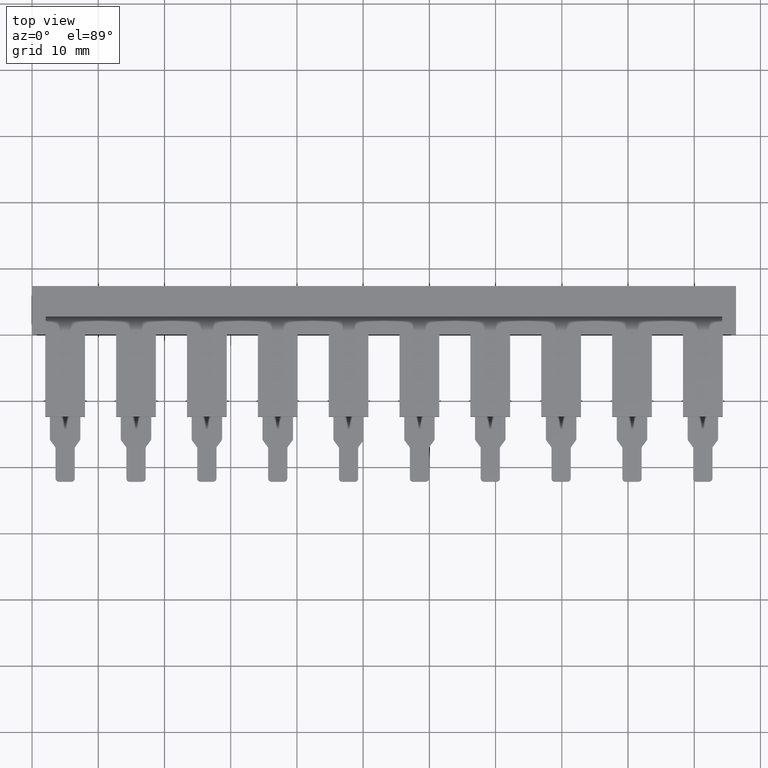
[diagram: clean part render]
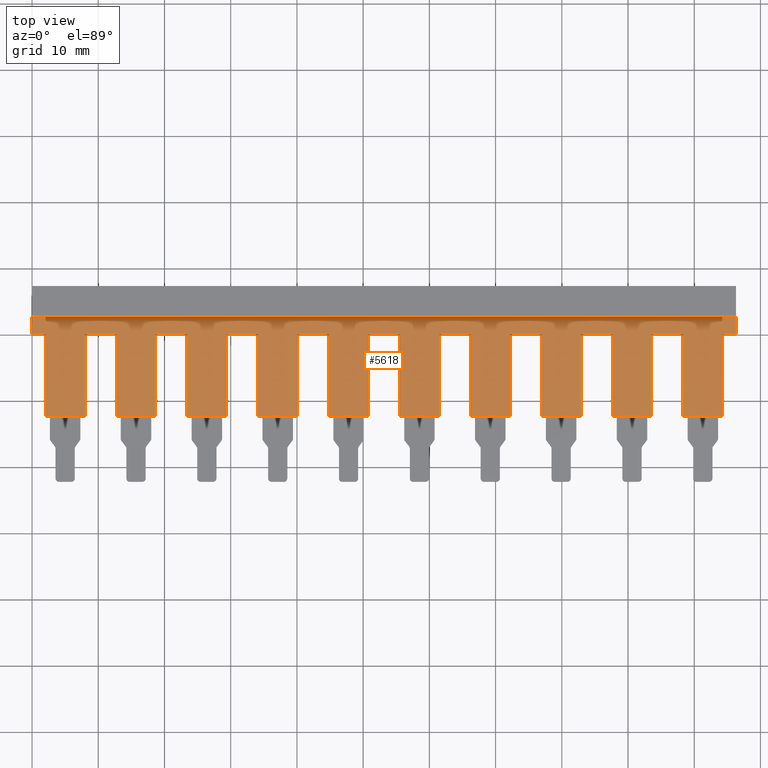
[diagram: same view with one face highlighted and labeled with its STEP entity id]
A machine part, top view. The second image highlights one B-rep face of the part: STEP entity #5618.
In plain terms, the highlighted planar face has unit normal (0, 0, 1).
Its self-contained STEP definition (entity closure, byte-faithful):
#608 = FACE_OUTER_BOUND ( 'NONE', #2208, .T. ) ;
#610 = DIRECTION ( 'NONE',  ( 0.0000000000000000000, 0.0000000000000000000, 1.000000000000000000 ) ) ;
#639 = CARTESIAN_POINT ( 'NONE',  ( 29.39999999999999500, 4.173744683200197900E-015, 4.100000000000000500 ) ) ;
#642 = PLANE ( 'NONE',  #1103 ) ;
#643 = DIRECTION ( 'NONE',  ( 1.000000000000000000, 0.0000000000000000000, -0.0000000000000000000 ) ) ;
#1103 = AXIS2_PLACEMENT_3D ( 'NONE', #639, #610, #643 ) ;
#1325 = VECTOR ( 'NONE', #2381, 1000.000000000000000 ) ;
#1335 = VECTOR ( 'NONE', #2469, 1000.000000000000000 ) ;
#1338 = VECTOR ( 'NONE', #2490, 1000.000000000000000 ) ;
#1339 = VECTOR ( 'NONE', #2498, 1000.000000000000000 ) ;
#1341 = VECTOR ( 'NONE', #2510, 1000.000000000000000 ) ;
#1342 = VECTOR ( 'NONE', #2366, 1000.000000000000000 ) ;
#1348 = VECTOR ( 'NONE', #2462, 1000.000000000000000 ) ;
#1353 = VECTOR ( 'NONE', #2415, 1000.000000000000000 ) ;
#1354 = VECTOR ( 'NONE', #2392, 1000.000000000000000 ) ;
#1355 = VECTOR ( 'NONE', #2408, 1000.000000000000000 ) ;
#1358 = VECTOR ( 'NONE', #2453, 1000.000000000000000 ) ;
#1359 = VECTOR ( 'NONE', #2404, 1000.000000000000000 ) ;
#1361 = VECTOR ( 'NONE', #2374, 1000.000000000000000 ) ;
#1362 = VECTOR ( 'NONE', #2460, 1000.000000000000000 ) ;
#1367 = VECTOR ( 'NONE', #2379, 1000.000000000000000 ) ;
#1370 = VECTOR ( 'NONE', #2530, 1000.000000000000000 ) ;
#1373 = VECTOR ( 'NONE', #2517, 1000.000000000000000 ) ;
#1376 = VECTOR ( 'NONE', #3388, 1000.000000000000000 ) ;
#1378 = VECTOR ( 'NONE', #2515, 1000.000000000000000 ) ;
#1379 = VECTOR ( 'NONE', #3351, 1000.000000000000000 ) ;
#1386 = VECTOR ( 'NONE', #3356, 1000.000000000000000 ) ;
#1387 = VECTOR ( 'NONE', #2547, 1000.000000000000000 ) ;
#1388 = VECTOR ( 'NONE', #2575, 1000.000000000000000 ) ;
#1393 = VECTOR ( 'NONE', #2491, 1000.000000000000000 ) ;
#1396 = VECTOR ( 'NONE', #2573, 1000.000000000000000 ) ;
#1397 = VECTOR ( 'NONE', #3364, 1000.000000000000000 ) ;
#1398 = VECTOR ( 'NONE', #2583, 1000.000000000000000 ) ;
#1403 = VECTOR ( 'NONE', #2568, 1000.000000000000000 ) ;
#1408 = VECTOR ( 'NONE', #3350, 1000.000000000000000 ) ;
#1414 = VECTOR ( 'NONE', #2492, 1000.000000000000000 ) ;
#1417 = VECTOR ( 'NONE', #2558, 1000.000000000000000 ) ;
#1420 = VECTOR ( 'NONE', #3352, 1000.000000000000000 ) ;
#1421 = VECTOR ( 'NONE', #2518, 1000.000000000000000 ) ;
#1424 = VECTOR ( 'NONE', #3432, 1000.000000000000000 ) ;
#1427 = VECTOR ( 'NONE', #3451, 1000.000000000000000 ) ;
#1430 = VECTOR ( 'NONE', #3439, 1000.000000000000000 ) ;
#1432 = VECTOR ( 'NONE', #3454, 1000.000000000000000 ) ;
#1434 = VECTOR ( 'NONE', #3448, 1000.000000000000000 ) ;
#1440 = VECTOR ( 'NONE', #3456, 1000.000000000000000 ) ;
#1444 = VECTOR ( 'NONE', #3464, 1000.000000000000000 ) ;
#1447 = VECTOR ( 'NONE', #3429, 1000.000000000000000 ) ;
#1449 = VECTOR ( 'NONE', #3443, 1000.000000000000000 ) ;
#1451 = VECTOR ( 'NONE', #3403, 1000.000000000000000 ) ;
#1456 = VECTOR ( 'NONE', #3393, 1000.000000000000000 ) ;
#2208 = EDGE_LOOP ( 'NONE', ( #6244, #6246, #6247, #6218, #6347, #6349, #6293, #6317, #6287, #6299, #6280, #6295, #6344, #6351, #6324, #6334, #6319, #6345, #6318, #6288, #6301, #6323, #6394, #6361, #6363, #6325, #6327, #6283, #6290, #6329, #6300, #6306, #6331, #6332, #6316, #6298, #6276, #6321, #6291, #6286, #6356, #6362, #6322, #6307 ) ) ;
#2341 = LINE ( 'NONE', #2368, #1359 ) ;
#2353 = LINE ( 'NONE', #2364, #1342 ) ;
#2364 = CARTESIAN_POINT ( 'NONE',  ( 42.10000000000000100, 6.585010314807962100E-015, 4.100000000000000500 ) ) ;
#2366 = DIRECTION ( 'NONE',  ( 1.000000000000000000, 2.775557561562890400E-016, -0.0000000000000000000 ) ) ;
#2368 = CARTESIAN_POINT ( 'NONE',  ( 29.39999999999999500, 2.700000000000004600, 4.100000000000000500 ) ) ;
#2371 = LINE ( 'NONE', #2396, #1367 ) ;
#2372 = LINE ( 'NONE', #2376, #1325 ) ;
#2374 = DIRECTION ( 'NONE',  ( 1.000000000000000000, 7.947176037020060600E-016, -0.0000000000000000000 ) ) ;
#2375 = LINE ( 'NONE', #2414, #1353 ) ;
#2376 = CARTESIAN_POINT ( 'NONE',  ( 20.07069040994250000, -12.39999999999999900, 4.100000000000000500 ) ) ;
#2379 = DIRECTION ( 'NONE',  ( 1.000000000000000000, 7.947176037020060600E-016, -0.0000000000000000000 ) ) ;
#2381 = DIRECTION ( 'NONE',  ( -1.000000000000000000, 0.0000000000000000000, 0.0000000000000000000 ) ) ;
#2386 = CARTESIAN_POINT ( 'NONE',  ( 87.59999999999999400, -12.49999999999998900, 4.100000000000000500 ) ) ;
#2388 = LINE ( 'NONE', #2461, #1362 ) ;
#2391 = LINE ( 'NONE', #2403, #1354 ) ;
#2392 = DIRECTION ( 'NONE',  ( -0.0000000000000000000, -1.000000000000000000, -0.0000000000000000000 ) ) ;
#2393 = LINE ( 'NONE', #2407, #1361 ) ;
#2396 = CARTESIAN_POINT ( 'NONE',  ( 18.70000000000000300, -1.879018618104244700E-015, 4.100000000000000500 ) ) ;
#2402 = LINE ( 'NONE', #2386, #1355 ) ;
#2403 = CARTESIAN_POINT ( 'NONE',  ( 34.10000000000000100, -12.49999999999999600, 4.100000000000000500 ) ) ;
#2404 = DIRECTION ( 'NONE',  ( -1.000000000000000000, -2.775557561562890400E-016, 0.0000000000000000000 ) ) ;
#2407 = CARTESIAN_POINT ( 'NONE',  ( 18.70000000000000300, -1.879018618104244700E-015, 4.100000000000000500 ) ) ;
#2408 = DIRECTION ( 'NONE',  ( -0.0000000000000000000, -1.000000000000000000, -0.0000000000000000000 ) ) ;
#2414 = CARTESIAN_POINT ( 'NONE',  ( 8.000000000000000000, -3.735172737399429900E-015, 4.100000000000000500 ) ) ;
#2415 = DIRECTION ( 'NONE',  ( -1.387778780781445900E-016, 1.000000000000000000, -0.0000000000000000000 ) ) ;
#2425 = LINE ( 'NONE', #2472, #1338 ) ;
#2429 = LINE ( 'NONE', #2456, #1358 ) ;
#2449 = LINE ( 'NONE', #2457, #1348 ) ;
#2453 = DIRECTION ( 'NONE',  ( -1.000000000000000000, 0.0000000000000000000, 0.0000000000000000000 ) ) ;
#2456 = CARTESIAN_POINT ( 'NONE',  ( 41.47069040994249900, -12.39999999999999500, 4.100000000000000500 ) ) ;
#2457 = CARTESIAN_POINT ( 'NONE',  ( 98.29999999999999700, -12.49999999999998600, 4.100000000000000500 ) ) ;
#2460 = DIRECTION ( 'NONE',  ( -3.016491377670779700E-016, 1.000000000000000000, -0.0000000000000000000 ) ) ;
#2461 = CARTESIAN_POINT ( 'NONE',  ( 106.3000000000000000, 7.300000000000017600, 4.100000000000000500 ) ) ;
#2462 = DIRECTION ( 'NONE',  ( -0.0000000000000000000, -1.000000000000000000, -0.0000000000000000000 ) ) ;
#2468 = CARTESIAN_POINT ( 'NONE',  ( 0.0000000000000000000, -12.40000000000000200, 4.099999999999999600 ) ) ;
#2469 = DIRECTION ( 'NONE',  ( -1.000000000000000000, 0.0000000000000000000, 0.0000000000000000000 ) ) ;
#2472 = CARTESIAN_POINT ( 'NONE',  ( 42.10000000000000100, 6.585010314807962100E-015, 4.100000000000000500 ) ) ;
#2474 = LINE ( 'NONE', #2504, #1341 ) ;
#2478 = LINE ( 'NONE', #2468, #1335 ) ;
#2482 = LINE ( 'NONE', #2503, #1393 ) ;
#2487 = LINE ( 'NONE', #2505, #1414 ) ;
#2488 = LINE ( 'NONE', #2495, #1339 ) ;
#2490 = DIRECTION ( 'NONE',  ( 1.000000000000000000, 2.775557561562890400E-016, -0.0000000000000000000 ) ) ;
#2491 = DIRECTION ( 'NONE',  ( 1.000000000000000000, 2.775557561562890400E-016, -0.0000000000000000000 ) ) ;
#2492 = DIRECTION ( 'NONE',  ( 1.000000000000000000, 0.0000000000000000000, -0.0000000000000000000 ) ) ;
#2495 = CARTESIAN_POINT ( 'NONE',  ( 0.0000000000000000000, 7.299999999999999800, 4.100000000000000500 ) ) ;
#2498 = DIRECTION ( 'NONE',  ( -2.409338161078894500E-017, -1.000000000000000000, -0.0000000000000000000 ) ) ;
#2503 = CARTESIAN_POINT ( 'NONE',  ( 42.10000000000000100, 6.585010314807962100E-015, 4.100000000000000500 ) ) ;
#2504 = CARTESIAN_POINT ( 'NONE',  ( 42.10000000000000100, 6.585010314807962100E-015, 4.100000000000000500 ) ) ;
#2505 = CARTESIAN_POINT ( 'NONE',  ( 0.0000000000000000000, 0.0000000000000000000, 4.100000000000000500 ) ) ;
#2510 = DIRECTION ( 'NONE',  ( 1.000000000000000000, 2.775557561562890400E-016, -0.0000000000000000000 ) ) ;
#2513 = LINE ( 'NONE', #2516, #1421 ) ;
#2515 = DIRECTION ( 'NONE',  ( -1.000000000000000000, 0.0000000000000000000, 0.0000000000000000000 ) ) ;
#2516 = CARTESIAN_POINT ( 'NONE',  ( 55.49999999999999300, -12.49999999999999300, 4.100000000000000500 ) ) ;
#2517 = DIRECTION ( 'NONE',  ( 1.000000000000000000, 2.775557561562890400E-016, -0.0000000000000000000 ) ) ;
#2518 = DIRECTION ( 'NONE',  ( -0.0000000000000000000, -1.000000000000000000, -0.0000000000000000000 ) ) ;
#2521 = LINE ( 'NONE', #2523, #1378 ) ;
#2522 = CARTESIAN_POINT ( 'NONE',  ( 66.19999999999998900, -12.49999999999999300, 4.100000000000000500 ) ) ;
#2523 = CARTESIAN_POINT ( 'NONE',  ( 73.57069040994248600, -12.39999999999999000, 4.100000000000000500 ) ) ;
#2526 = LINE ( 'NONE', #2529, #1370 ) ;
#2529 = CARTESIAN_POINT ( 'NONE',  ( 40.10000000000000100, -2.286449880905931700E-017, 4.100000000000000500 ) ) ;
#2530 = DIRECTION ( 'NONE',  ( -2.775557561562890400E-016, 1.000000000000000000, -0.0000000000000000000 ) ) ;
#2532 = LINE ( 'NONE', #2522, #1417 ) ;
#2538 = LINE ( 'NONE', #2550, #1387 ) ;
#2547 = DIRECTION ( 'NONE',  ( 1.000000000000000000, 2.775557561562890400E-016, -0.0000000000000000000 ) ) ;
#2550 = CARTESIAN_POINT ( 'NONE',  ( 42.10000000000000100, 6.585010314807962100E-015, 4.100000000000000500 ) ) ;
#2552 = LINE ( 'NONE', #2555, #1373 ) ;
#2555 = CARTESIAN_POINT ( 'NONE',  ( 42.10000000000000100, 6.585010314807962100E-015, 4.100000000000000500 ) ) ;
#2558 = DIRECTION ( 'NONE',  ( -0.0000000000000000000, -1.000000000000000000, -0.0000000000000000000 ) ) ;
#2562 = LINE ( 'NONE', #2603, #1398 ) ;
#2565 = LINE ( 'NONE', #2597, #1396 ) ;
#2568 = DIRECTION ( 'NONE',  ( 1.000000000000000000, 2.775557561562890400E-016, -0.0000000000000000000 ) ) ;
#2573 = DIRECTION ( 'NONE',  ( -2.775557561562890400E-016, 1.000000000000000000, -0.0000000000000000000 ) ) ;
#2574 = LINE ( 'NONE', #2579, #1388 ) ;
#2575 = DIRECTION ( 'NONE',  ( -1.000000000000000000, 0.0000000000000000000, 0.0000000000000000000 ) ) ;
#2579 = CARTESIAN_POINT ( 'NONE',  ( 62.87069040994249000, -12.39999999999999100, 4.100000000000000500 ) ) ;
#2582 = CARTESIAN_POINT ( 'NONE',  ( 31.39999999999999900, 4.728856195512776100E-015, 4.100000000000000500 ) ) ;
#2583 = DIRECTION ( 'NONE',  ( -0.0000000000000000000, -1.000000000000000000, -0.0000000000000000000 ) ) ;
#2594 = LINE ( 'NONE', #2582, #1403 ) ;
#2597 = CARTESIAN_POINT ( 'NONE',  ( 18.70000000000000600, -3.735172737399429900E-015, 4.100000000000000500 ) ) ;
#2603 = CARTESIAN_POINT ( 'NONE',  ( 23.39999999999999900, -12.49999999999999800, 4.100000000000000500 ) ) ;
#3350 = DIRECTION ( 'NONE',  ( -1.000000000000000000, 0.0000000000000000000, 0.0000000000000000000 ) ) ;
#3351 = DIRECTION ( 'NONE',  ( -2.775557561562890400E-016, 1.000000000000000000, -0.0000000000000000000 ) ) ;
#3352 = DIRECTION ( 'NONE',  ( -1.000000000000000000, 0.0000000000000000000, 0.0000000000000000000 ) ) ;
#3354 = LINE ( 'NONE', #3370, #1386 ) ;
#3356 = DIRECTION ( 'NONE',  ( -2.775557561562890400E-016, 1.000000000000000000, -0.0000000000000000000 ) ) ;
#3358 = LINE ( 'NONE', #3368, #1397 ) ;
#3362 = LINE ( 'NONE', #3387, #1379 ) ;
#3363 = LINE ( 'NONE', #3384, #1376 ) ;
#3364 = DIRECTION ( 'NONE',  ( -0.0000000000000000000, -1.000000000000000000, -0.0000000000000000000 ) ) ;
#3367 = LINE ( 'NONE', #3377, #1420 ) ;
#3368 = CARTESIAN_POINT ( 'NONE',  ( 76.89999999999999100, -12.49999999999999100, 4.100000000000000500 ) ) ;
#3370 = CARTESIAN_POINT ( 'NONE',  ( 104.3000000000000000, 1.111406021696205100E-014, 4.100000000000000500 ) ) ;
#3376 = LINE ( 'NONE', #3382, #1408 ) ;
#3377 = CARTESIAN_POINT ( 'NONE',  ( 84.27069040994248900, -12.39999999999998600, 4.100000000000000500 ) ) ;
#3382 = CARTESIAN_POINT ( 'NONE',  ( 52.17069040994250200, -12.39999999999999300, 4.100000000000000500 ) ) ;
#3384 = CARTESIAN_POINT ( 'NONE',  ( 50.79999999999999700, 1.833289620486124800E-015, 4.100000000000000500 ) ) ;
#3387 = CARTESIAN_POINT ( 'NONE',  ( 93.60000000000000900, 9.257906097666864700E-015, 4.100000000000000500 ) ) ;
#3388 = DIRECTION ( 'NONE',  ( -2.775557561562890400E-016, 1.000000000000000000, -0.0000000000000000000 ) ) ;
#3393 = DIRECTION ( 'NONE',  ( -0.0000000000000000000, -1.000000000000000000, -0.0000000000000000000 ) ) ;
#3396 = LINE ( 'NONE', #3467, #1440 ) ;
#3399 = CARTESIAN_POINT ( 'NONE',  ( 44.79999999999999000, -12.49999999999999500, 4.100000000000000500 ) ) ;
#3403 = DIRECTION ( 'NONE',  ( -2.775557561562890400E-016, 1.000000000000000000, -0.0000000000000000000 ) ) ;
#3404 = LINE ( 'NONE', #3455, #1430 ) ;
#3418 = CARTESIAN_POINT ( 'NONE',  ( 9.370690409942499200, -12.40000000000000000, 4.100000000000000500 ) ) ;
#3423 = LINE ( 'NONE', #3430, #1451 ) ;
#3425 = LINE ( 'NONE', #3418, #1447 ) ;
#3426 = CARTESIAN_POINT ( 'NONE',  ( 12.69999999999999900, -12.50000000000000000, 4.100000000000000500 ) ) ;
#3428 = LINE ( 'NONE', #3399, #1456 ) ;
#3429 = DIRECTION ( 'NONE',  ( -1.000000000000000000, 0.0000000000000000000, 0.0000000000000000000 ) ) ;
#3430 = CARTESIAN_POINT ( 'NONE',  ( 29.40000000000000200, -1.879018618104244700E-015, 4.100000000000000500 ) ) ;
#3431 = LINE ( 'NONE', #3426, #1424 ) ;
#3432 = DIRECTION ( 'NONE',  ( -0.0000000000000000000, -1.000000000000000000, -0.0000000000000000000 ) ) ;
#3439 = DIRECTION ( 'NONE',  ( 1.000000000000000000, 2.775557561562890400E-016, -0.0000000000000000000 ) ) ;
#3442 = LINE ( 'NONE', #3445, #1427 ) ;
#3443 = DIRECTION ( 'NONE',  ( -2.775557561562890400E-016, 1.000000000000000000, -0.0000000000000000000 ) ) ;
#3444 = LINE ( 'NONE', #3452, #1449 ) ;
#3445 = CARTESIAN_POINT ( 'NONE',  ( 82.90000000000000600, 7.401751978371679500E-015, 4.100000000000000500 ) ) ;
#3447 = CARTESIAN_POINT ( 'NONE',  ( 30.77069040994249600, -12.39999999999999700, 4.100000000000000500 ) ) ;
#3448 = DIRECTION ( 'NONE',  ( -1.000000000000000000, 0.0000000000000000000, 0.0000000000000000000 ) ) ;
#3449 = LINE ( 'NONE', #3453, #1432 ) ;
#3450 = LINE ( 'NONE', #3460, #1444 ) ;
#3451 = DIRECTION ( 'NONE',  ( -2.775557561562890400E-016, 1.000000000000000000, -0.0000000000000000000 ) ) ;
#3452 = CARTESIAN_POINT ( 'NONE',  ( 72.20000000000000300, 5.545597859076495100E-015, 4.100000000000000500 ) ) ;
#3453 = CARTESIAN_POINT ( 'NONE',  ( 61.50000000000000000, 3.689443739781310800E-015, 4.100000000000000500 ) ) ;
#3454 = DIRECTION ( 'NONE',  ( -2.775557561562890400E-016, 1.000000000000000000, -0.0000000000000000000 ) ) ;
#3455 = CARTESIAN_POINT ( 'NONE',  ( 106.3000000000000000, 1.772193503057907400E-014, 4.100000000000000500 ) ) ;
#3456 = DIRECTION ( 'NONE',  ( -1.000000000000000000, 0.0000000000000000000, 0.0000000000000000000 ) ) ;
#3460 = CARTESIAN_POINT ( 'NONE',  ( 2.000000000000000000, -12.50000000000000000, 4.100000000000000500 ) ) ;
#3464 = DIRECTION ( 'NONE',  ( -0.0000000000000000000, -1.000000000000000000, -0.0000000000000000000 ) ) ;
#3467 = CARTESIAN_POINT ( 'NONE',  ( -1.329309590057500000, -12.40000000000000200, 4.100000000000000500 ) ) ;
#3472 = LINE ( 'NONE', #3447, #1434 ) ;
#4584 = CARTESIAN_POINT ( 'NONE',  ( 87.59999999999999400, 1.921379721991911200E-014, 4.100000000000000500 ) ) ;
#4585 = CARTESIAN_POINT ( 'NONE',  ( 98.29999999999999700, -12.39999999999998600, 4.100000000000000500 ) ) ;
#4587 = CARTESIAN_POINT ( 'NONE',  ( 106.3000000000000000, 2.700000000000017500, 4.100000000000000500 ) ) ;
#4588 = CARTESIAN_POINT ( 'NONE',  ( -8.794084287937965300E-017, 0.0000000000000000000, 4.100000000000000500 ) ) ;
#4592 = CARTESIAN_POINT ( 'NONE',  ( 8.000000000000001800, -12.40000000000000200, 4.100000000000000500 ) ) ;
#4594 = CARTESIAN_POINT ( 'NONE',  ( 12.69999999999999900, -6.647324240316282100E-015, 4.100000000000000500 ) ) ;
#4595 = CARTESIAN_POINT ( 'NONE',  ( 98.29999999999999700, 1.391543977001162300E-014, 4.100000000000000500 ) ) ;
#4596 = CARTESIAN_POINT ( 'NONE',  ( 44.79999999999999000, 7.334410856429940400E-015, 4.100000000000000500 ) ) ;
#4597 = CARTESIAN_POINT ( 'NONE',  ( 104.3000000000000000, -12.39999999999998600, 4.100000000000000500 ) ) ;
#4600 = CARTESIAN_POINT ( 'NONE',  ( 18.70000000000000300, 2.317590563905013500E-015, 4.100000000000000500 ) ) ;
#4613 = CARTESIAN_POINT ( 'NONE',  ( 106.3000000000000000, 1.737672505885968900E-014, 4.100000000000000500 ) ) ;
#4622 = CARTESIAN_POINT ( 'NONE',  ( -1.108295554096292100E-016, 2.699999999999997500, 4.100000000000000500 ) ) ;
#4624 = CARTESIAN_POINT ( 'NONE',  ( 93.60000000000000900, -12.39999999999999000, 4.100000000000000500 ) ) ;
#4625 = CARTESIAN_POINT ( 'NONE',  ( 50.79999999999999700, 7.886052921790568200E-015, 4.100000000000000500 ) ) ;
#4627 = CARTESIAN_POINT ( 'NONE',  ( 23.39999999999999900, 9.223609349453271000E-016, 4.100000000000000500 ) ) ;
#4630 = CARTESIAN_POINT ( 'NONE',  ( 8.000000000000000000, -3.735172737399429900E-015, 4.100000000000000500 ) ) ;
#4632 = CARTESIAN_POINT ( 'NONE',  ( 76.89999999999999100, 1.624395062904681800E-014, 4.100000000000000500 ) ) ;
#4633 = CARTESIAN_POINT ( 'NONE',  ( 23.39999999999999900, -12.40000000000000000, 4.100000000000000500 ) ) ;
#4634 = CARTESIAN_POINT ( 'NONE',  ( 34.10000000000000100, 2.778515054240512100E-015, 4.100000000000000500 ) ) ;
#4635 = CARTESIAN_POINT ( 'NONE',  ( 87.59999999999999400, -12.39999999999999000, 4.100000000000000500 ) ) ;
#4640 = CARTESIAN_POINT ( 'NONE',  ( 104.3000000000000000, 1.716682351826649600E-014, 4.100000000000000500 ) ) ;
#4647 = CARTESIAN_POINT ( 'NONE',  ( 40.10000000000000900, -12.39999999999999900, 4.100000000000000500 ) ) ;
#4648 = CARTESIAN_POINT ( 'NONE',  ( 61.50000000000000700, -12.39999999999999500, 4.100000000000000500 ) ) ;
#4649 = CARTESIAN_POINT ( 'NONE',  ( 66.19999999999998900, 1.327410403817452600E-014, 4.100000000000000500 ) ) ;
#4650 = CARTESIAN_POINT ( 'NONE',  ( 40.09999999999999400, 6.029898802495384600E-015, 4.100000000000000500 ) ) ;
#4659 = CARTESIAN_POINT ( 'NONE',  ( 82.90000000000000600, 1.345451527967612200E-014, 4.100000000000000500 ) ) ;
#4661 = CARTESIAN_POINT ( 'NONE',  ( 66.19999999999998900, -12.39999999999999300, 4.100000000000000500 ) ) ;
#4662 = CARTESIAN_POINT ( 'NONE',  ( 50.80000000000000400, -12.39999999999999700, 4.100000000000000500 ) ) ;
#4663 = CARTESIAN_POINT ( 'NONE',  ( 29.40000000000000900, -12.40000000000000000, 4.100000000000000500 ) ) ;
#4664 = CARTESIAN_POINT ( 'NONE',  ( 44.79999999999999000, -12.39999999999999700, 4.100000000000000500 ) ) ;
#4669 = CARTESIAN_POINT ( 'NONE',  ( 29.40000000000000200, 4.173744683200198700E-015, 4.100000000000000500 ) ) ;
#4674 = CARTESIAN_POINT ( 'NONE',  ( 12.69999999999999900, -12.40000000000000200, 4.100000000000000500 ) ) ;
#4678 = CARTESIAN_POINT ( 'NONE',  ( 72.20000000000000300, 1.159836116038093900E-014, 4.100000000000000500 ) ) ;
#4679 = CARTESIAN_POINT ( 'NONE',  ( 61.50000000000000000, 9.742207041085755000E-015, 4.100000000000000500 ) ) ;
#4680 = CARTESIAN_POINT ( 'NONE',  ( 55.49999999999999300, 1.030425744730223300E-014, 4.100000000000000500 ) ) ;
#4681 = CARTESIAN_POINT ( 'NONE',  ( 55.49999999999999300, -12.39999999999999500, 4.100000000000000500 ) ) ;
#4682 = CARTESIAN_POINT ( 'NONE',  ( 34.10000000000000100, -12.39999999999999900, 4.100000000000000500 ) ) ;
#4683 = CARTESIAN_POINT ( 'NONE',  ( 18.70000000000001000, -12.40000000000000200, 4.100000000000000500 ) ) ;
#4685 = CARTESIAN_POINT ( 'NONE',  ( 93.59999999999999400, 1.531066939897130900E-014, 4.100000000000000500 ) ) ;
#4691 = CARTESIAN_POINT ( 'NONE',  ( 2.000000000000000400, 0.0000000000000000000, 4.100000000000000500 ) ) ;
#4694 = CARTESIAN_POINT ( 'NONE',  ( 72.20000000000001700, -12.39999999999999300, 4.100000000000000500 ) ) ;
#4704 = CARTESIAN_POINT ( 'NONE',  ( 82.90000000000000600, -12.39999999999999100, 4.100000000000000500 ) ) ;
#4713 = CARTESIAN_POINT ( 'NONE',  ( 76.89999999999999100, -12.39999999999999100, 4.100000000000000500 ) ) ;
#4718 = CARTESIAN_POINT ( 'NONE',  ( 2.000000000000000000, -12.40000000000000200, 4.100000000000000500 ) ) ;
#5031 = EDGE_CURVE ( 'NONE', #5841, #5851, #2353, .T. ) ;
#5032 = EDGE_CURVE ( 'NONE', #5818, #5814, #2341, .T. ) ;
#5036 = EDGE_CURVE ( 'NONE', #5822, #5807, #2375, .T. ) ;
#5037 = EDGE_CURVE ( 'NONE', #5847, #5870, #2372, .T. ) ;
#5039 = EDGE_CURVE ( 'NONE', #5891, #5870, #2391, .T. ) ;
#5041 = EDGE_CURVE ( 'NONE', #5815, #5845, #2402, .T. ) ;
#5045 = EDGE_CURVE ( 'NONE', #5825, #5833, #2393, .T. ) ;
#5046 = EDGE_CURVE ( 'NONE', #5807, #5823, #2371, .T. ) ;
#5048 = EDGE_CURVE ( 'NONE', #5816, #5818, #2388, .T. ) ;
#5049 = EDGE_CURVE ( 'NONE', #5824, #5817, #2449, .T. ) ;
#5056 = EDGE_CURVE ( 'NONE', #5883, #5860, #2429, .T. ) ;
#5066 = EDGE_CURVE ( 'NONE', #5854, #5824, #2425, .T. ) ;
#5070 = EDGE_CURVE ( 'NONE', #5822, #5913, #2478, .T. ) ;
#5071 = EDGE_CURVE ( 'NONE', #5814, #5820, #2488, .T. ) ;
#5073 = EDGE_CURVE ( 'NONE', #5886, #5829, #2474, .T. ) ;
#5076 = EDGE_CURVE ( 'NONE', #5840, #5846, #2482, .T. ) ;
#5077 = EDGE_CURVE ( 'NONE', #5820, #5914, #2487, .T. ) ;
#5081 = EDGE_CURVE ( 'NONE', #5849, #5815, #2538, .T. ) ;
#5082 = EDGE_CURVE ( 'NONE', #5806, #5853, #2552, .T. ) ;
#5083 = EDGE_CURVE ( 'NONE', #5838, #5845, #2521, .T. ) ;
#5090 = EDGE_CURVE ( 'NONE', #5846, #5880, #2532, .T. ) ;
#5094 = EDGE_CURVE ( 'NONE', #5853, #5860, #2513, .T. ) ;
#5095 = EDGE_CURVE ( 'NONE', #5847, #5886, #2526, .T. ) ;
#5101 = EDGE_CURVE ( 'NONE', #5917, #5915, #2574, .T. ) ;
#5102 = EDGE_CURVE ( 'NONE', #5888, #5891, #2594, .T. ) ;
#5104 = EDGE_CURVE ( 'NONE', #5871, #5825, #2565, .T. ) ;
#5106 = EDGE_CURVE ( 'NONE', #5833, #5890, #2562, .T. ) ;
#5112 = EDGE_CURVE ( 'NONE', #5831, #5848, #3354, .T. ) ;
#5116 = EDGE_CURVE ( 'NONE', #5851, #5915, #3358, .T. ) ;
#5117 = EDGE_CURVE ( 'NONE', #5911, #5880, #3376, .T. ) ;
#5118 = EDGE_CURVE ( 'NONE', #5831, #5817, #3367, .T. ) ;
#5121 = EDGE_CURVE ( 'NONE', #5838, #5854, #3362, .T. ) ;
#5123 = EDGE_CURVE ( 'NONE', #5881, #5806, #3363, .T. ) ;
#5132 = EDGE_CURVE ( 'NONE', #5829, #5862, #3428, .T. ) ;
#5133 = EDGE_CURVE ( 'NONE', #5850, #5890, #3425, .T. ) ;
#5137 = EDGE_CURVE ( 'NONE', #5850, #5888, #3423, .T. ) ;
#5138 = EDGE_CURVE ( 'NONE', #5823, #5873, #3431, .T. ) ;
#5141 = EDGE_CURVE ( 'NONE', #5917, #5849, #3442, .T. ) ;
#5143 = EDGE_CURVE ( 'NONE', #5914, #5913, #3450, .T. ) ;
#5144 = EDGE_CURVE ( 'NONE', #5911, #5841, #3444, .T. ) ;
#5146 = EDGE_CURVE ( 'NONE', #5848, #5816, #3404, .T. ) ;
#5147 = EDGE_CURVE ( 'NONE', #5881, #5862, #3472, .T. ) ;
#5149 = EDGE_CURVE ( 'NONE', #5871, #5873, #3396, .T. ) ;
#5150 = EDGE_CURVE ( 'NONE', #5883, #5840, #3449, .T. ) ;
#5618 = ADVANCED_FACE ( 'NONE', ( #608 ), #642, .T. ) ;
#5806 = VERTEX_POINT ( 'NONE', #4625 ) ;
#5807 = VERTEX_POINT ( 'NONE', #4630 ) ;
#5814 = VERTEX_POINT ( 'NONE', #4622 ) ;
#5815 = VERTEX_POINT ( 'NONE', #4584 ) ;
#5816 = VERTEX_POINT ( 'NONE', #4613 ) ;
#5817 = VERTEX_POINT ( 'NONE', #4585 ) ;
#5818 = VERTEX_POINT ( 'NONE', #4587 ) ;
#5820 = VERTEX_POINT ( 'NONE', #4588 ) ;
#5822 = VERTEX_POINT ( 'NONE', #4592 ) ;
#5823 = VERTEX_POINT ( 'NONE', #4594 ) ;
#5824 = VERTEX_POINT ( 'NONE', #4595 ) ;
#5825 = VERTEX_POINT ( 'NONE', #4600 ) ;
#5829 = VERTEX_POINT ( 'NONE', #4596 ) ;
#5831 = VERTEX_POINT ( 'NONE', #4597 ) ;
#5833 = VERTEX_POINT ( 'NONE', #4627 ) ;
#5838 = VERTEX_POINT ( 'NONE', #4624 ) ;
#5840 = VERTEX_POINT ( 'NONE', #4679 ) ;
#5841 = VERTEX_POINT ( 'NONE', #4678 ) ;
#5845 = VERTEX_POINT ( 'NONE', #4635 ) ;
#5846 = VERTEX_POINT ( 'NONE', #4649 ) ;
#5847 = VERTEX_POINT ( 'NONE', #4647 ) ;
#5848 = VERTEX_POINT ( 'NONE', #4640 ) ;
#5849 = VERTEX_POINT ( 'NONE', #4659 ) ;
#5850 = VERTEX_POINT ( 'NONE', #4663 ) ;
#5851 = VERTEX_POINT ( 'NONE', #4632 ) ;
#5853 = VERTEX_POINT ( 'NONE', #4680 ) ;
#5854 = VERTEX_POINT ( 'NONE', #4685 ) ;
#5860 = VERTEX_POINT ( 'NONE', #4681 ) ;
#5862 = VERTEX_POINT ( 'NONE', #4664 ) ;
#5870 = VERTEX_POINT ( 'NONE', #4682 ) ;
#5871 = VERTEX_POINT ( 'NONE', #4683 ) ;
#5873 = VERTEX_POINT ( 'NONE', #4674 ) ;
#5880 = VERTEX_POINT ( 'NONE', #4661 ) ;
#5881 = VERTEX_POINT ( 'NONE', #4662 ) ;
#5883 = VERTEX_POINT ( 'NONE', #4648 ) ;
#5886 = VERTEX_POINT ( 'NONE', #4650 ) ;
#5888 = VERTEX_POINT ( 'NONE', #4669 ) ;
#5890 = VERTEX_POINT ( 'NONE', #4633 ) ;
#5891 = VERTEX_POINT ( 'NONE', #4634 ) ;
#5911 = VERTEX_POINT ( 'NONE', #4694 ) ;
#5913 = VERTEX_POINT ( 'NONE', #4718 ) ;
#5914 = VERTEX_POINT ( 'NONE', #4691 ) ;
#5915 = VERTEX_POINT ( 'NONE', #4713 ) ;
#5917 = VERTEX_POINT ( 'NONE', #4704 ) ;
#6218 = ORIENTED_EDGE ( 'NONE', *, *, #5121, .T. ) ;
#6244 = ORIENTED_EDGE ( 'NONE', *, *, #5081, .T. ) ;
#6246 = ORIENTED_EDGE ( 'NONE', *, *, #5041, .T. ) ;
#6247 = ORIENTED_EDGE ( 'NONE', *, *, #5083, .F. ) ;
#6276 = ORIENTED_EDGE ( 'NONE', *, *, #5076, .T. ) ;
#6280 = ORIENTED_EDGE ( 'NONE', *, *, #5032, .T. ) ;
#6283 = ORIENTED_EDGE ( 'NONE', *, *, #5095, .T. ) ;
#6286 = ORIENTED_EDGE ( 'NONE', *, *, #5144, .T. ) ;
#6287 = ORIENTED_EDGE ( 'NONE', *, *, #5146, .T. ) ;
#6288 = ORIENTED_EDGE ( 'NONE', *, *, #5104, .T. ) ;
#6290 = ORIENTED_EDGE ( 'NONE', *, *, #5073, .T. ) ;
#6291 = ORIENTED_EDGE ( 'NONE', *, *, #5117, .F. ) ;
#6293 = ORIENTED_EDGE ( 'NONE', *, *, #5118, .F. ) ;
#6295 = ORIENTED_EDGE ( 'NONE', *, *, #5071, .T. ) ;
#6298 = ORIENTED_EDGE ( 'NONE', *, *, #5150, .T. ) ;
#6299 = ORIENTED_EDGE ( 'NONE', *, *, #5048, .T. ) ;
#6300 = ORIENTED_EDGE ( 'NONE', *, *, #5147, .F. ) ;
#6301 = ORIENTED_EDGE ( 'NONE', *, *, #5045, .T. ) ;
#6306 = ORIENTED_EDGE ( 'NONE', *, *, #5123, .T. ) ;
#6307 = ORIENTED_EDGE ( 'NONE', *, *, #5141, .T. ) ;
#6316 = ORIENTED_EDGE ( 'NONE', *, *, #5056, .F. ) ;
#6317 = ORIENTED_EDGE ( 'NONE', *, *, #5112, .T. ) ;
#6318 = ORIENTED_EDGE ( 'NONE', *, *, #5149, .F. ) ;
#6319 = ORIENTED_EDGE ( 'NONE', *, *, #5046, .T. ) ;
#6321 = ORIENTED_EDGE ( 'NONE', *, *, #5090, .T. ) ;
#6322 = ORIENTED_EDGE ( 'NONE', *, *, #5101, .F. ) ;
#6323 = ORIENTED_EDGE ( 'NONE', *, *, #5106, .T. ) ;
#6324 = ORIENTED_EDGE ( 'NONE', *, *, #5070, .F. ) ;
#6325 = ORIENTED_EDGE ( 'NONE', *, *, #5039, .T. ) ;
#6327 = ORIENTED_EDGE ( 'NONE', *, *, #5037, .F. ) ;
#6329 = ORIENTED_EDGE ( 'NONE', *, *, #5132, .T. ) ;
#6331 = ORIENTED_EDGE ( 'NONE', *, *, #5082, .T. ) ;
#6332 = ORIENTED_EDGE ( 'NONE', *, *, #5094, .T. ) ;
#6334 = ORIENTED_EDGE ( 'NONE', *, *, #5036, .T. ) ;
#6344 = ORIENTED_EDGE ( 'NONE', *, *, #5077, .T. ) ;
#6345 = ORIENTED_EDGE ( 'NONE', *, *, #5138, .T. ) ;
#6347 = ORIENTED_EDGE ( 'NONE', *, *, #5066, .T. ) ;
#6349 = ORIENTED_EDGE ( 'NONE', *, *, #5049, .T. ) ;
#6351 = ORIENTED_EDGE ( 'NONE', *, *, #5143, .T. ) ;
#6356 = ORIENTED_EDGE ( 'NONE', *, *, #5031, .T. ) ;
#6361 = ORIENTED_EDGE ( 'NONE', *, *, #5137, .T. ) ;
#6362 = ORIENTED_EDGE ( 'NONE', *, *, #5116, .T. ) ;
#6363 = ORIENTED_EDGE ( 'NONE', *, *, #5102, .T. ) ;
#6394 = ORIENTED_EDGE ( 'NONE', *, *, #5133, .F. ) ;